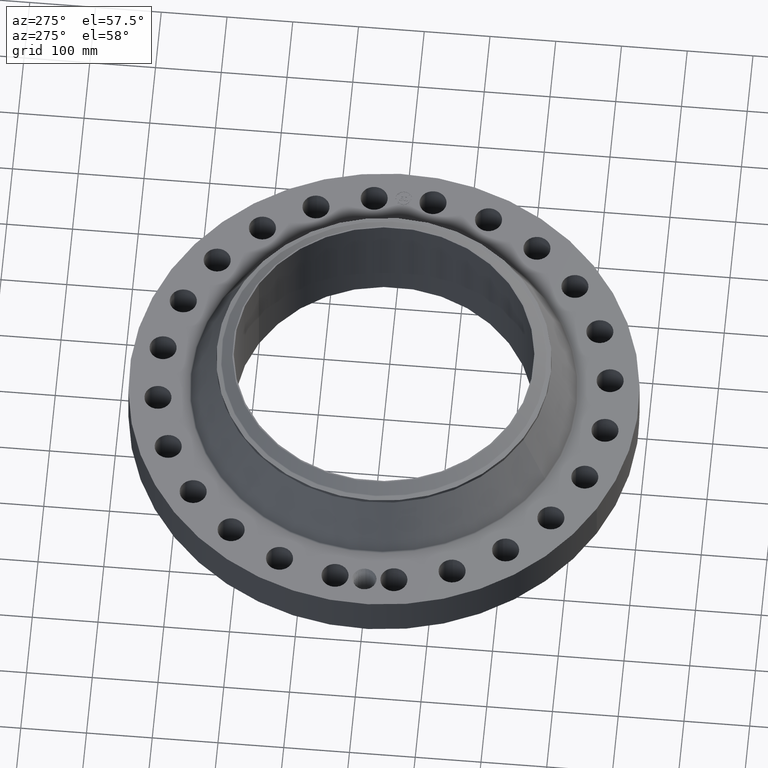
[diagram: clean part render]
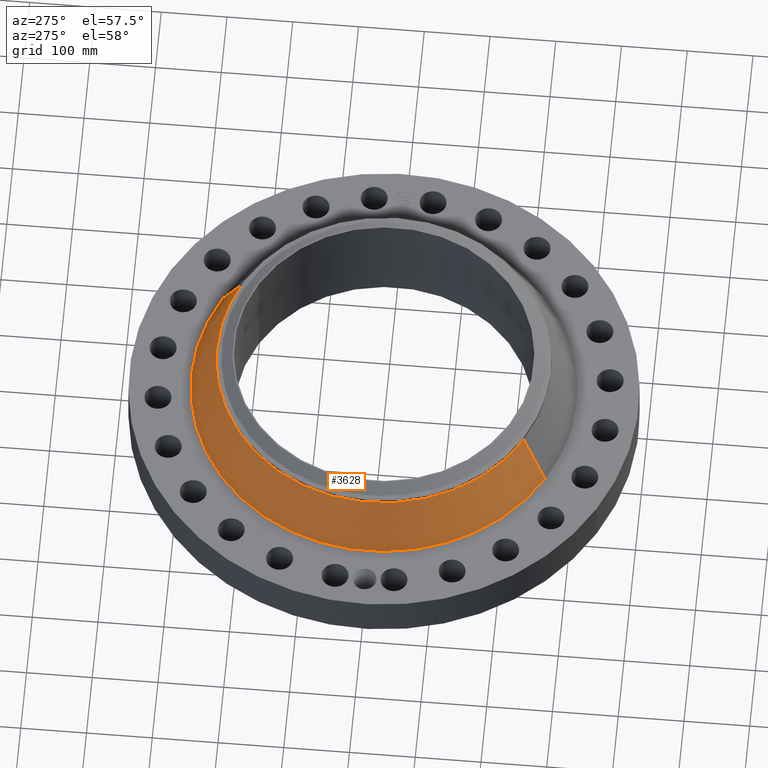
[diagram: same view with one face highlighted and labeled with its STEP entity id]
A machine part, auxiliary view. The second image highlights one B-rep face of the part: STEP entity #3628.
In plain terms, the highlighted conical surface has half-angle 26.935 deg.
Its self-contained STEP definition (entity closure, byte-faithful):
#2901=AXIS2_PLACEMENT_3D('Circle Axis2P3D',#2899,#2900,$) ;
#3589=AXIS2_PLACEMENT_3D('Cone Axis2P3D',#3586,#3587,#3588) ;
#3619=AXIS2_PLACEMENT_3D('Circle Axis2P3D',#3617,#3618,$) ;
#2877=CARTESIAN_POINT('Vertex',(5.52616913341,10.1155847468,3.06564305084)) ;
#2884=CARTESIAN_POINT('Vertex',(-5.52616913341,-10.1155847468,3.06564305084)) ;
#2899=CARTESIAN_POINT('Axis2P3D Location',(0.,0.,3.06564305084)) ;
#3586=CARTESIAN_POINT('Axis2P3D Location',(0.,0.,6.07031923874)) ;
#3591=CARTESIAN_POINT('Line Origine',(5.16021225973,9.44570518287,4.56798114479)) ;
#3595=CARTESIAN_POINT('Vertex',(4.79425538606,8.77582561894,6.07031923874)) ;
#3602=CARTESIAN_POINT('Vertex',(-4.79425538606,-8.77582561894,6.07031923874)) ;
#3605=CARTESIAN_POINT('Line Origine',(-5.16021225973,-9.44570518287,4.56798114479)) ;
#3617=CARTESIAN_POINT('Axis2P3D Location',(0.,0.,6.07031923874)) ;
#2900=DIRECTION('Axis2P3D Direction',(0.,0.,-0.0393700787402)) ;
#3587=DIRECTION('Axis2P3D Direction',(0.,0.,-0.0393700787402)) ;
#3588=DIRECTION('Axis2P3D XDirection',(-0.0188750212049,-0.0345504945626,0.)) ;
#3592=DIRECTION('Vector Direction',(0.00854990473612,0.0156504956413,-0.0350993477887)) ;
#3606=DIRECTION('Vector Direction',(-0.00854990473612,-0.0156504956413,-0.0350993477887)) ;
#3618=DIRECTION('Axis2P3D Direction',(0.,0.,-0.0393700787402)) ;
#3593=VECTOR('Line Direction',#3592,0.0393700787402) ;
#3607=VECTOR('Line Direction',#3606,0.0393700787402) ;
#3623=ORIENTED_EDGE('',*,*,#2903,.F.) ;
#3624=ORIENTED_EDGE('',*,*,#3609,.T.) ;
#3625=ORIENTED_EDGE('',*,*,#3621,.T.) ;
#3626=ORIENTED_EDGE('',*,*,#3597,.F.) ;
#3628=ADVANCED_FACE('PartBody',(#3627),#3590,.T.) ;
#2902=CIRCLE('generated circle',#2901,11.5266473903) ;
#3620=CIRCLE('generated circle',#3619,10.) ;
#3590=CONICAL_SURFACE('Cone',#3589,10.,0.470099031461) ;
#2903=EDGE_CURVE('',#2885,#2878,#2902,.T.) ;
#3597=EDGE_CURVE('',#2878,#3596,#3594,.F.) ;
#3609=EDGE_CURVE('',#2885,#3603,#3608,.F.) ;
#3621=EDGE_CURVE('',#3603,#3596,#3620,.T.) ;
#3622=EDGE_LOOP('',(#3623,#3624,#3625,#3626)) ;
#3627=FACE_OUTER_BOUND('',#3622,.T.) ;
#3594=LINE('Line',#3591,#3593) ;
#3608=LINE('Line',#3605,#3607) ;
#2878=VERTEX_POINT('',#2877) ;
#2885=VERTEX_POINT('',#2884) ;
#3596=VERTEX_POINT('',#3595) ;
#3603=VERTEX_POINT('',#3602) ;